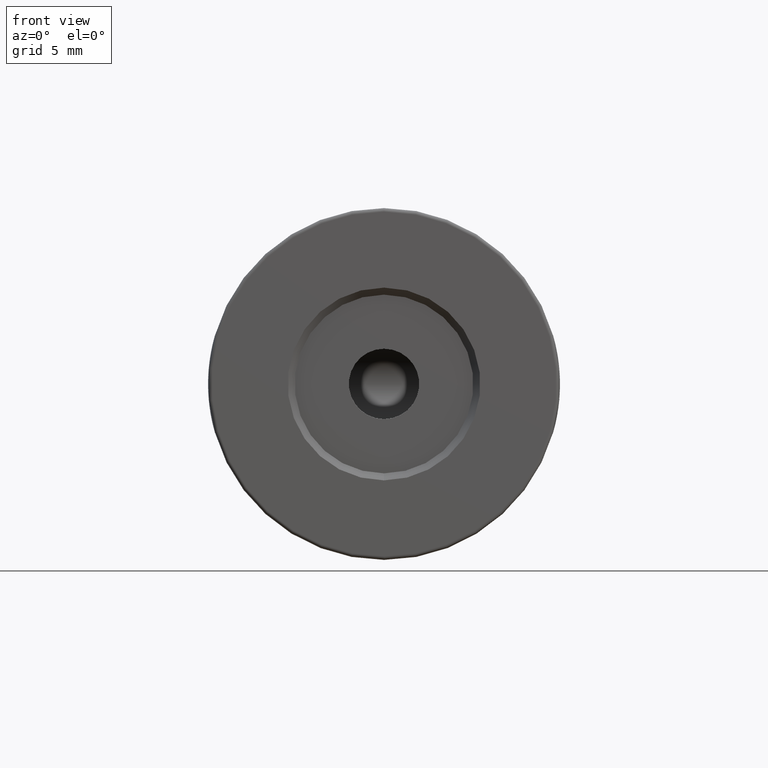
[diagram: clean part render]
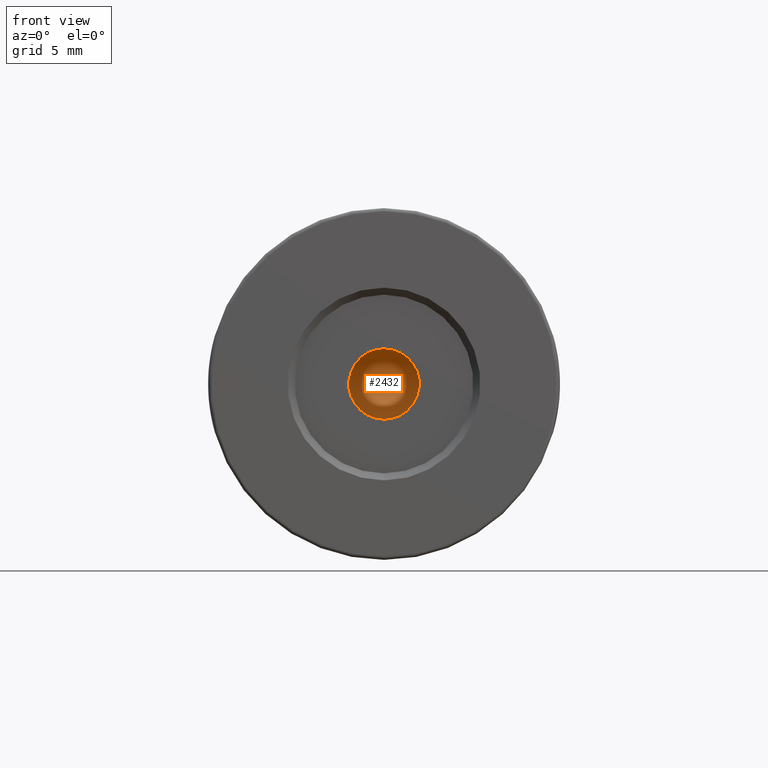
[diagram: same view with one face highlighted and labeled with its STEP entity id]
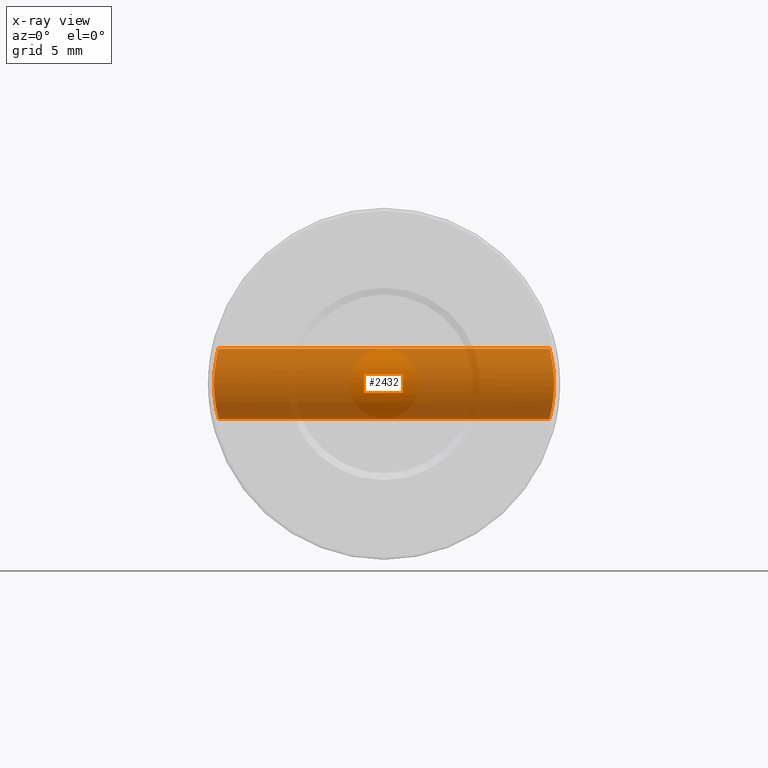
[diagram: x-ray of the same camera — body ghosted, the highlighted face saturated]
A machine part, front view. The second image highlights one B-rep face of the part: STEP entity #2432.
The next image is the same camera in x-ray: the body ghosted, the highlighted face saturated — about 84% of this face is hidden behind the body in this view.
In plain terms, the highlighted cylindrical surface (edge-blend (fillet) strip) has radius 2.5 mm, axis along (1, -0, -0).
Its self-contained STEP definition (entity closure, byte-faithful):
#4 = CARTESIAN_POINT ( 'NONE',  ( -10.62437748581073649, -0.1803884314933206778, 51.93853686256246505 ) ) ;
#10 = CARTESIAN_POINT ( 'NONE',  ( -34.39265141552139227, -0.2193597808292668816, 51.90615621044650396 ) ) ;
#20 = CARTESIAN_POINT ( 'NONE',  ( -10.62344330914831225, -0.1859351134989435661, 51.93400119754716826 ) ) ;
#28 = CARTESIAN_POINT ( 'NONE',  ( -10.58721188071734787, -0.3882578059546166194, 48.25113323411276411 ) ) ;
#36 = CARTESIAN_POINT ( 'NONE',  ( -10.48170455071147522, -0.8797127351548863494, 51.03018400399467680 ) ) ;
#45 = CARTESIAN_POINT ( 'NONE',  ( -10.75775311712865445, 1.398252184769388506, 47.50000000000000000 ) ) ;
#46 = CARTESIAN_POINT ( 'NONE',  ( -10.72308232675205986, 0.5941581163004499011, 47.63248772437646750 ) ) ;
#52 = CARTESIAN_POINT ( 'NONE',  ( -10.68486198365939366, 0.2326005165148466447, 52.21170044164220769 ) ) ;
#60 = CARTESIAN_POINT ( 'NONE',  ( -34.49555993425454403, -0.7371358815147359689, 51.30020623637663135 ) ) ;
#61 = DIRECTION ( 'NONE',  ( 1.000000000000000000, -0.0000000000000000000, -0.0000000000000000000 ) ) ;
#64 = CARTESIAN_POINT ( 'NONE',  ( -10.68052348045019784, 0.1982792118971468120, 47.80671014582457445 ) ) ;
#70 = CARTESIAN_POINT ( 'NONE',  ( -10.53564298324378257, -0.6428015421453538991, 51.44386386526315391 ) ) ;
#82 = CARTESIAN_POINT ( 'NONE',  ( -10.68765339093628519, 0.2547109133025253214, 47.77645880616913843 ) ) ;
#85 = CARTESIAN_POINT ( 'NONE',  ( -34.29800687137474569, 0.4791906238469882395, 47.67497262551757586 ) ) ;
#112 = EDGE_LOOP ( 'NONE', ( #481, #2353, #709, #255, #1177 ) ) ;
#114 = CARTESIAN_POINT ( 'NONE',  ( -34.51594362385686310, -0.8258666277012809420, 51.14180818663960792 ) ) ;
#116 = CARTESIAN_POINT ( 'NONE',  ( -34.56747093977340057, -1.036417866412739475, 49.43074854711917254 ) ) ;
#131 = CARTESIAN_POINT ( 'NONE',  ( -34.55371675180102642, -0.9819582165694238363, 50.76562840239724750 ) ) ;
#134 = CARTESIAN_POINT ( 'NONE',  ( -34.53415704703507316, -0.9023810259837362624, 49.02146608222710711 ) ) ;
#150 = CARTESIAN_POINT ( 'NONE',  ( -34.48044836708264427, -0.6689643209632596399, 48.59404682438722745 ) ) ;
#189 = CARTESIAN_POINT ( 'NONE',  ( -34.34705827747517048, 0.07100138804354222399, 47.88122892107483608 ) ) ;
#193 = CARTESIAN_POINT ( 'NONE',  ( -34.26763340208005104, 0.8690186579160552593, 47.55632946928094640 ) ) ;
#198 = CARTESIAN_POINT ( 'NONE',  ( -34.31595423361532937, 0.3112339593886476741, 52.25194986132113684 ) ) ;
#210 = CARTESIAN_POINT ( 'NONE',  ( -10.69192657274768443, 0.2906602529965023329, 52.24135659736990789 ) ) ;
#228 = CARTESIAN_POINT ( 'NONE',  ( -34.47813198008005031, -0.6583300114746030163, 48.57853664004964855 ) ) ;
#232 = CARTESIAN_POINT ( 'NONE',  ( -34.36077538717431423, -0.02236865110984462973, 52.05716408901216141 ) ) ;
#238 = CARTESIAN_POINT ( 'NONE',  ( -10.47039545447000108, -0.9264528070377106017, 49.08012378245110341 ) ) ;
#252 = CARTESIAN_POINT ( 'NONE',  ( -34.39467459845570829, -0.2310918294290756070, 51.89616302055772223 ) ) ;
#255 = ORIENTED_EDGE ( 'NONE', *, *, #507, .T. ) ;
#264 = CARTESIAN_POINT ( 'NONE',  ( -10.43471003864933166, -1.068430130415672474, 49.59111660097227059 ) ) ;
#269 = CARTESIAN_POINT ( 'NONE',  ( -34.40082131572958701, -0.2661626668825619046, 51.86541833322175421 ) ) ;
#275 = FACE_OUTER_BOUND ( 'NONE', #112, .T. ) ;
#283 = CARTESIAN_POINT ( 'NONE',  ( -10.47779617321161716, -0.8959676763990875870, 50.99345784365126377 ) ) ;
#293 = CARTESIAN_POINT ( 'NONE',  ( -10.62899526948806539, -0.1530495289050314844, 48.03899991150878179 ) ) ;
#301 = CARTESIAN_POINT ( 'NONE',  ( -10.67397712750120498, 0.1479697805592347648, 52.16528279548629854 ) ) ;
#312 = CARTESIAN_POINT ( 'NONE',  ( -10.62054598116515791, -0.2030448081873243438, 48.08011745683154459 ) ) ;
#316 = CARTESIAN_POINT ( 'NONE',  ( -34.28890165779009891, 0.5753963107748397698, 47.63868203714510940 ) ) ;
#321 = CARTESIAN_POINT ( 'NONE',  ( -10.65924026931347690, 0.04251003605533445334, 52.10049443549728920 ) ) ;
#332 = CARTESIAN_POINT ( 'NONE',  ( -10.75344419893103520, 1.071524213025601524, 47.51584169795629720 ) ) ;
#338 = CARTESIAN_POINT ( 'NONE',  ( -10.65663854589587345, 0.02464572236132245298, 52.08885589110060721 ) ) ;
#347 = CARTESIAN_POINT ( 'NONE',  ( -34.46581749594461286, -0.6009040175811750650, 51.50126430587299353 ) ) ;
#366 = CARTESIAN_POINT ( 'NONE',  ( -34.46180608894741226, -0.5818729988016708710, 51.52640824507910366 ) ) ;
#398 = CARTESIAN_POINT ( 'NONE',  ( -34.57597065877052245, -1.069532232658006565, 50.40818179684670497 ) ) ;
#416 = CARTESIAN_POINT ( 'NONE',  ( -34.58016539617010210, -1.085858857418758205, 49.67297012222038433 ) ) ;
#473 = CARTESIAN_POINT ( 'NONE',  ( -10.71009666006360916, 0.4561568447563419393, 52.31578128150344043 ) ) ;
#481 = ORIENTED_EDGE ( 'NONE', *, *, #569, .T. ) ;
#487 = CARTESIAN_POINT ( 'NONE',  ( -34.32517718084985603, 0.2355261595478357339, 47.78675913459554891 ) ) ;
#493 = CARTESIAN_POINT ( 'NONE',  ( -34.54369241578397975, -0.9415190389735978993, 49.11843870328495854 ) ) ;
#497 = CARTESIAN_POINT ( 'NONE',  ( -34.45474805831925380, -0.5478052659481170705, 51.56936024582881117 ) ) ;
#503 = CARTESIAN_POINT ( 'NONE',  ( -10.54864018143774018, -0.5816680152934502468, 48.47333049421902729 ) ) ;
#507 = EDGE_CURVE ( 'NONE', #1039, #3047, #1747, .T. ) ;
#512 = CARTESIAN_POINT ( 'NONE',  ( -10.72622720232376281, 0.6314631383175767221, 52.37983731701496737 ) ) ;
#513 = CARTESIAN_POINT ( 'NONE',  ( -34.45111437474876226, -0.5300818197651799846, 48.40891250346157193 ) ) ;
#517 = CARTESIAN_POINT ( 'NONE',  ( -34.30408236987682358, 0.4194607100801373001, 52.30052462114043266 ) ) ;
#529 = CARTESIAN_POINT ( 'NONE',  ( -10.44688409141883056, -1.021078929300595295, 50.65151652725806031 ) ) ;
#531 = CARTESIAN_POINT ( 'NONE',  ( -34.38704001703006696, -0.1864058910311852113, 48.06638648098589783 ) ) ;
#546 = CARTESIAN_POINT ( 'NONE',  ( -10.52981318183221049, -0.6696149487519204024, 51.40499581736358437 ) ) ;
#551 = CARTESIAN_POINT ( 'NONE',  ( -34.44811386680073184, -0.5154113351079939731, 51.60895465329333121 ) ) ;
#556 = CARTESIAN_POINT ( 'NONE',  ( -10.50337425847412298, -0.7875330553439074954, 48.78598592219974250 ) ) ;
#562 = CARTESIAN_POINT ( 'NONE',  ( -10.55933643631673036, -0.5298495552806219422, 51.59136355188930168 ) ) ;
#564 = AXIS2_PLACEMENT_3D ( 'NONE', #1336, #1092, #2412 ) ;
#569 = EDGE_CURVE ( 'NONE', #727, #3101, #3458, .T. ) ;
#573 = CARTESIAN_POINT ( 'NONE',  ( -10.70455658934707621, 0.4028058138086482720, 47.70664235407782172 ) ) ;
#581 = CARTESIAN_POINT ( 'NONE',  ( -10.47600715848626152, -0.9033707158368257106, 50.97620108939386085 ) ) ;
#591 = CARTESIAN_POINT ( 'NONE',  ( -10.70635219090200252, 0.4197558956641881389, 47.69935029143454130 ) ) ;
#598 = CARTESIAN_POINT ( 'NONE',  ( -10.59387149139175754, -0.3528523106093582329, 51.78446549813023125 ) ) ;
#634 = VERTEX_POINT ( 'NONE', #2827 ) ;
#659 = EDGE_CURVE ( 'NONE', #727, #3047, #2247, .T. ) ;
#678 = CARTESIAN_POINT ( 'NONE',  ( -34.45766587036780493, -0.5621190266067536134, 48.44791823235173212 ) ) ;
#694 = CARTESIAN_POINT ( 'NONE',  ( -34.51574154471299494, -0.8250691337205215969, 48.85603395556573503 ) ) ;
#709 = ORIENTED_EDGE ( 'NONE', *, *, #1890, .T. ) ;
#717 = CARTESIAN_POINT ( 'NONE',  ( -34.25695295455719958, 1.112906428189776697, 47.51599801852885463 ) ) ;
#718 = CARTESIAN_POINT ( 'NONE',  ( -10.75775323120715399, 1.317121902678270118, 52.50000000000002132 ) ) ;
#727 = VERTEX_POINT ( 'NONE', #1719 ) ;
#734 = CARTESIAN_POINT ( 'NONE',  ( -10.71216316140438884, 0.4768201538511090964, 52.32409050752311686 ) ) ;
#739 = CARTESIAN_POINT ( 'NONE',  ( -34.42801395613719251, -0.4135384967534036504, 51.72265782465134976 ) ) ;
#746 = CARTESIAN_POINT ( 'NONE',  ( -10.52659986134303693, -0.6842789163735558677, 48.61683424884410698 ) ) ;
#755 = CARTESIAN_POINT ( 'NONE',  ( -34.47459360791595628, -0.6420274704840180924, 48.55504079422338748 ) ) ;
#759 = CARTESIAN_POINT ( 'NONE',  ( -34.45330299445076605, -0.5407750536076870729, 51.57803819710194659 ) ) ;
#765 = CARTESIAN_POINT ( 'NONE',  ( -10.54466226501337367, -0.6005430652878442910, 48.49825746406909843 ) ) ;
#774 = CARTESIAN_POINT ( 'NONE',  ( -34.50679950141667973, -0.7864865987144373793, 48.78455501224498647 ) ) ;
#775 = CARTESIAN_POINT ( 'NONE',  ( -34.38468148764225418, -0.1723687771389699475, 48.05495386555471526 ) ) ;
#779 = CARTESIAN_POINT ( 'NONE',  ( -34.32973418822894018, 0.1994190620384079238, 52.19391175066421340 ) ) ;
#790 = CARTESIAN_POINT ( 'NONE',  ( -10.50780244124337592, -0.7681796817775874420, 51.24778492135310870 ) ) ;
#808 = CARTESIAN_POINT ( 'NONE',  ( -10.45095694804539477, -1.004789451087468866, 49.30937450540822908 ) ) ;
#813 = CARTESIAN_POINT ( 'NONE',  ( -34.42163468960668382, -0.3800297845704209143, 51.75724919837321636 ) ) ;
#823 = CARTESIAN_POINT ( 'NONE',  ( -10.63294623926910099, -0.1287006706456982341, 51.97970505892236304 ) ) ;
#834 = CARTESIAN_POINT ( 'NONE',  ( -10.65192854981632742, -0.007112948275145715253, 47.93238411280905353 ) ) ;
#841 = CARTESIAN_POINT ( 'NONE',  ( -10.56932247538099290, -0.4803972759782706992, 51.64957173091018916 ) ) ;
#851 = CARTESIAN_POINT ( 'NONE',  ( -10.73524935634131516, 0.7501397675428063128, 47.58512630802446353 ) ) ;
#858 = CARTESIAN_POINT ( 'NONE',  ( -10.50134449062284148, -0.7962799576074739427, 51.19769795373751720 ) ) ;
#865 = CARTESIAN_POINT ( 'NONE',  ( -34.48808448558423834, -0.7036677772116114449, 51.35353115234058663 ) ) ;
#870 = CARTESIAN_POINT ( 'NONE',  ( -10.74267190343696576, 0.8671768546495410845, 47.55670384601889822 ) ) ;
#873 = CARTESIAN_POINT ( 'NONE',  ( -34.29428882789179056, 0.5177238711234519730, 47.66010762347374197 ) ) ;
#888 = CARTESIAN_POINT ( 'NONE',  ( -10.60970156007116394, -0.2654886929673718199, 48.13398014645178336 ) ) ;
#905 = LINE ( 'NONE', #1107, #1785 ) ;
#922 = CARTESIAN_POINT ( 'NONE',  ( -34.52237776065066299, -0.8532812731859517053, 48.91209882761436489 ) ) ;
#936 = CARTESIAN_POINT ( 'NONE',  ( -34.55953902161954261, -1.005153659594356208, 50.68936837211829527 ) ) ;
#938 = CARTESIAN_POINT ( 'NONE',  ( -34.55357667332192761, -0.9813988309537613475, 49.23254846258252115 ) ) ;
#953 = CARTESIAN_POINT ( 'NONE',  ( -34.58436371778454799, -1.101747815230613492, 49.83753810370576787 ) ) ;
#975 = CARTESIAN_POINT ( 'NONE',  ( -34.34333947314369340, 0.09759829477691389643, 47.86488434567955608 ) ) ;
#992 = CARTESIAN_POINT ( 'NONE',  ( -10.75667521398798065, 1.235421006825002221, 52.49604762626790944 ) ) ;
#993 = CARTESIAN_POINT ( 'NONE',  ( -34.40583974823650237, -0.2943204204934978252, 48.15994960694639815 ) ) ;
#1003 = CARTESIAN_POINT ( 'NONE',  ( -10.51501407881782058, -0.7363793038041487327, 48.69855127287216590 ) ) ;
#1030 = CARTESIAN_POINT ( 'NONE',  ( -10.73219813121981403, 0.7077767490346167367, 52.40308858968249694 ) ) ;
#1036 = CARTESIAN_POINT ( 'NONE',  ( -34.28602672658942652, 0.5950355727956065932, 52.37347955788578702 ) ) ;
#1039 = VERTEX_POINT ( 'NONE', #1873 ) ;
#1059 = CARTESIAN_POINT ( 'NONE',  ( -10.56681441816432176, -0.4930984351755354211, 48.36462535807400087 ) ) ;
#1066 = CARTESIAN_POINT ( 'NONE',  ( -10.51723568327209257, -0.7265641942448558543, 51.31788815418866534 ) ) ;
#1071 = CARTESIAN_POINT ( 'NONE',  ( -34.32265489828704830, 0.2554984144373432242, 52.22394071949533867 ) ) ;
#1076 = CARTESIAN_POINT ( 'NONE',  ( -10.49015723662941646, -0.8441725912525092079, 48.89457436136567026 ) ) ;
#1084 = CARTESIAN_POINT ( 'NONE',  ( -10.51011081746967868, -0.7580530289132585420, 51.26521392788514930 ) ) ;
#1092 = DIRECTION ( 'NONE',  ( 1.000000000000000000, -0.0000000000000000000, -0.0000000000000000000 ) ) ;
#1093 = CARTESIAN_POINT ( 'NONE',  ( -10.65951608119885741, 0.04397262649407106261, 47.89814453425144336 ) ) ;
#1100 = CARTESIAN_POINT ( 'NONE',  ( -10.66678853300221164, 0.09561727186248163146, 52.13390632464330565 ) ) ;
#1107 = CARTESIAN_POINT ( 'NONE',  ( -35.00520183104453764, 1.398252184769388728, 52.50000000000000711 ) ) ;
#1110 = CARTESIAN_POINT ( 'NONE',  ( -10.58870654708653269, -0.3803608511539144366, 48.24308501965853679 ) ) ;
#1117 = CARTESIAN_POINT ( 'NONE',  ( -10.44294982558156448, -1.036351153573099149, 49.43045362228356510 ) ) ;
#1129 = CARTESIAN_POINT ( 'NONE',  ( -10.57485337623805144, -0.4524102366566613576, 48.31908865531918451 ) ) ;
#1132 = CARTESIAN_POINT ( 'NONE',  ( -34.30005545319553306, 0.4586515401138411829, 47.68320585999445171 ) ) ;
#1136 = CARTESIAN_POINT ( 'NONE',  ( -10.64475702027863413, -0.05449199741924836554, 52.03499243828983367 ) ) ;
#1148 = CARTESIAN_POINT ( 'NONE',  ( -10.61189752609478631, -0.2530256317350424999, 48.12295669579027901 ) ) ;
#1177 = ORIENTED_EDGE ( 'NONE', *, *, #659, .F. ) ;
#1180 = CARTESIAN_POINT ( 'NONE',  ( -34.49189742569884487, -0.7208368889622009945, 51.32674070393353105 ) ) ;
#1197 = CARTESIAN_POINT ( 'NONE',  ( -34.54897798572429224, -0.9629645925416924213, 50.82316125434730480 ) ) ;
#1199 = CARTESIAN_POINT ( 'NONE',  ( -34.50003614694480802, -0.7569234432954018432, 48.73286471894269312 ) ) ;
#1214 = CARTESIAN_POINT ( 'NONE',  ( -34.48138769154284944, -0.6732635636674279001, 48.60037921175494802 ) ) ;
#1256 = CARTESIAN_POINT ( 'NONE',  ( -34.40289296276199593, -0.2778242768919360062, 48.14495784727603933 ) ) ;
#1266 = CARTESIAN_POINT ( 'NONE',  ( -10.50786879652205741, -0.7679670883881050125, 48.75133047365998351 ) ) ;
#1277 = CARTESIAN_POINT ( 'NONE',  ( -34.25265217549183916, 1.236269165593523622, 52.49999999999998579 ) ) ;
#1286 = CARTESIAN_POINT ( 'NONE',  ( -34.33611078083165324, 0.1503272234353575376, 47.83335261604787547 ) ) ;
#1293 = CARTESIAN_POINT ( 'NONE',  ( -34.56241719055794448, -1.016540575789292689, 49.35158547341726631 ) ) ;
#1297 = CARTESIAN_POINT ( 'NONE',  ( -34.36811292905907322, -0.07006115757143065170, 52.02348116212040452 ) ) ;
#1313 = CARTESIAN_POINT ( 'NONE',  ( -34.35081851356336813, 0.04444782519342278110, 52.10216400116998869 ) ) ;
#1319 = CARTESIAN_POINT ( 'NONE',  ( -10.49456390202389677, -0.8254235333270041330, 48.85732724745205502 ) ) ;
#1326 = CARTESIAN_POINT ( 'NONE',  ( -10.62583528340229577, -0.1716875950641233162, 51.94559000062294984 ) ) ;
#1328 = CARTESIAN_POINT ( 'NONE',  ( -34.39051756313286745, -0.2070101103378802210, 48.08329390852364327 ) ) ;
#1332 = CARTESIAN_POINT ( 'NONE',  ( -34.33170421931531280, 0.1841765981154878384, 52.18549987223106257 ) ) ;
#1336 = CARTESIAN_POINT ( 'NONE',  ( -35.00520183104453764, 1.398252184769388506, 50.00000000000000000 ) ) ;
#1344 = CARTESIAN_POINT ( 'NONE',  ( -10.43025254437210769, -1.085644778680322053, 49.71374546758001856 ) ) ;
#1353 = CARTESIAN_POINT ( 'NONE',  ( -10.64607111686072649, -0.04577195245549119107, 47.95906072895276395 ) ) ;
#1360 = CARTESIAN_POINT ( 'NONE',  ( -10.53935697225628587, -0.6254966278904094956, 51.46794146037775164 ) ) ;
#1370 = CARTESIAN_POINT ( 'NONE',  ( -10.70057055067832685, 0.3661159421488617283, 47.72291907341046624 ) ) ;
#1377 = CARTESIAN_POINT ( 'NONE',  ( -10.59768553197382168, -0.3321902542280796289, 51.80448705926472996 ) ) ;
#1390 = CARTESIAN_POINT ( 'NONE',  ( -10.75775311712865623, 1.236031257711929898, 47.50000000000000000 ) ) ;
#1397 = CARTESIAN_POINT ( 'NONE',  ( -10.60419655755958246, -0.2963636034840753108, 51.83817352606860851 ) ) ;
#1409 = CARTESIAN_POINT ( 'NONE',  ( -10.58234760794886498, -0.4137576540519005142, 48.27757271554101237 ) ) ;
#1441 = CARTESIAN_POINT ( 'NONE',  ( -34.53254672175685158, -0.8957462109828211450, 50.99453643543887438 ) ) ;
#1460 = CARTESIAN_POINT ( 'NONE',  ( -34.49294447752536996, -0.7255657383558774542, 48.68051045376237340 ) ) ;
#1514 = CARTESIAN_POINT ( 'NONE',  ( -34.26152439529791138, 0.9901480680356844477, 47.53318789124507049 ) ) ;
#1515 = CARTESIAN_POINT ( 'NONE',  ( -10.75209340271500835, 1.071636353599802138, 52.47891861098529631 ) ) ;
#1529 = CARTESIAN_POINT ( 'NONE',  ( -10.70449112277518822, 0.4016970245362215808, 52.29312540135870080 ) ) ;
#1530 = CARTESIAN_POINT ( 'NONE',  ( -34.42649553502509718, -0.4059594383566856868, 48.26863308257305363 ) ) ;
#1534 = CARTESIAN_POINT ( 'NONE',  ( -34.43263066567352837, -0.4374791448329103383, 51.69724255881645547 ) ) ;
#1547 = CARTESIAN_POINT ( 'NONE',  ( -10.74040006284352877, 0.8288618079345160261, 52.43464063303999723 ) ) ;
#1552 = CARTESIAN_POINT ( 'NONE',  ( -34.43550956289654152, -0.4522026044721966231, 51.68113994060188077 ) ) ;
#1559 = CARTESIAN_POINT ( 'NONE',  ( -10.55706874359513492, -0.5409305587045541985, 48.42215307470207364 ) ) ;
#1563 = CARTESIAN_POINT ( 'NONE',  ( -34.58436371778454799, -1.101747815230615046, 50.00000000000000000 ) ) ;
#1568 = CARTESIAN_POINT ( 'NONE',  ( -34.58436371778454799, -1.101747815230615046, 50.00000000000000000 ) ) ;
#1578 = CARTESIAN_POINT ( 'NONE',  ( -10.55563654014836494, -0.5478977700298309772, 48.43075464452042667 ) ) ;
#1584 = CARTESIAN_POINT ( 'NONE',  ( -10.42710243056527553, -1.097735351422951755, 49.83632547957881798 ) ) ;
#1590 = CARTESIAN_POINT ( 'NONE',  ( -34.36433900642597905, -0.04581549949826657642, 52.04091040488674480 ) ) ;
#1601 = CARTESIAN_POINT ( 'NONE',  ( -10.45853397089038417, -0.9753457992834111412, 50.80247828378053043 ) ) ;
#1618 = CARTESIAN_POINT ( 'NONE',  ( -10.55902407222945172, -0.5313805189203987256, 51.58951214123936779 ) ) ;
#1630 = CARTESIAN_POINT ( 'NONE',  ( -10.61791199076122716, -0.2184314463495034275, 48.09305608994720416 ) ) ;
#1637 = CARTESIAN_POINT ( 'NONE',  ( -10.43018898294854679, -1.086043810299175405, 50.32543852519913230 ) ) ;
#1639 = B_SPLINE_CURVE_WITH_KNOTS ( 'NONE', 3,
 ( #1734, #2498, #2244, #3299, #398, #1966, #2532, #1682, #936, #131, #1197, #1700, #2191, #3261, #1441, #2264, #2515, #114, #2461, #3330, #2759, #60, #1180, #865, #1928, #3004, #2739, #2208, #347, #366, #2934, #497, #759, #2119, #551, #2632, #1552, #1534, #739, #2874, #2895, #813, #3413, #2371, #269, #1823, #3190, #2916, #2650, #252, #10, #1876, #2349, #2137, #3432, #1297, #1590, #232, #3172, #2951, #1313, #2387, #2330, #2596, #1332, #779, #1071, #198, #2407, #2084, #517, #1036, #3154, #2100, #1277, #3394 ),
 .UNSPECIFIED., .F., .F.,
 ( 4, 2, 2, 2, 2, 1, 2, 2, 1, 2, 2, 2, 1, 2, 2, 2, 1, 1, 2, 2, 2, 2, 2, 2, 2, 2, 2, 1, 2, 2, 2, 1, 2, 2, 2, 2, 2, 1, 2, 2, 2, 4 ),
 ( 0.0000000000000000000, 0.01563223350078627241, 0.03126446700157254482, 0.03908058375196633849, 0.04689670050236013910, 0.05471281725275393276, 0.05862087562795077755, 0.06252893400314761541, 0.07034505075354244297, 0.07425310912873984981, 0.07816116750393724277, 0.08597728425433208421, 0.08988534262952996290, 0.09183937181712892306, 0.09379340100472786934, 0.1016095177551236683, 0.1055175761303221021, 0.1074716053179218811, 0.1084486199117213057, 0.1094256345055207164, 0.1172417512559174591, 0.1211498096311162953, 0.1231038388187162130, 0.1250578680063161308, 0.1328739847567160792, 0.1348280139443153725, 0.1358050285381150191, 0.1367820431319146657, 0.1387360723195141254, 0.1406901015071136130, 0.1485062182575125345, 0.1524142766327119813, 0.1543683058203113023, 0.1563223350079106511, 0.1641384517583071578, 0.1680465101335056610, 0.1719545685087041920, 0.1797706852591011706, 0.1836787436342996183, 0.1875868020094980382, 0.2188512690110833436, 0.2501157360126686768 ),
 .UNSPECIFIED. ) ;
#1648 = CARTESIAN_POINT ( 'NONE',  ( -10.74042506147667986, 0.8292857282064747260, 47.56526349991110436 ) ) ;
#1655 = CARTESIAN_POINT ( 'NONE',  ( -10.56685546659999808, -0.4927281287833141787, 51.63538786505993272 ) ) ;
#1666 = CARTESIAN_POINT ( 'NONE',  ( -10.63454691679359065, -0.1190031699460922104, 48.01264145042072329 ) ) ;
#1682 = CARTESIAN_POINT ( 'NONE',  ( -34.56249268766860894, -1.016837435991812644, 50.64733428474590227 ) ) ;
#1700 = CARTESIAN_POINT ( 'NONE',  ( -34.54368112407826885, -0.9414460339458976534, 50.88104559072728961 ) ) ;
#1719 = CARTESIAN_POINT ( 'NONE',  ( -34.25265054498070327, 1.398252184769378959, 47.49999999999540989 ) ) ;
#1734 = CARTESIAN_POINT ( 'NONE',  ( -34.58436371778454799, -1.101747815230615046, 50.00000000000000000 ) ) ;
#1736 = CARTESIAN_POINT ( 'NONE',  ( -34.47086386077137377, -0.6246421137252744504, 48.53088012368284865 ) ) ;
#1747 = B_SPLINE_CURVE_WITH_KNOTS ( 'NONE', 3,
 ( #2364, #718, #992, #2114, #1515, #2645, #1818, #3390, #1547, #2060, #1030, #512, #2096, #3131, #734, #473, #1529, #2606, #210, #1921, #52, #3184, #301, #1100, #2980, #321, #338, #2148, #2420, #1136, #3219, #823, #2132, #1326, #4, #20, #1886, #2436, #2166, #1397, #1377, #598, #2962, #2401, #841, #1655, #2472, #2946, #2732, #562, #1618, #2184, #2697, #1360, #70, #3235, #546, #1872, #1855, #1066, #1084, #790, #2929, #858, #2680, #1904, #36, #283, #581, #1601, #529, #1637, #2453, #2716, #1584, #1344, #2662, #264, #2997, #3203, #1117, #3253, #808, #1828, #2940, #2413, #238, #2108, #2125, #3418, #1076, #1319, #2394, #556, #1266, #1003, #2335, #2071, #3141, #746, #1811, #2902, #765, #503, #2922, #1578, #1559, #2656, #3454, #1059, #1129, #1932, #1409, #3282, #28, #1110, #1915, #3228, #888, #2195, #1148, #2466, #2744, #2691, #1630, #312, #2991, #293, #1666, #2726, #1353, #1950, #834, #2428, #1093, #2709, #2158, #2484, #1897, #64, #82, #2973, #1370, #573, #591, #3265, #2446, #46, #2178, #3247, #851, #1648, #870, #332, #1390, #3008 ),
 .UNSPECIFIED., .F., .F.,
 ( 4, 2, 2, 2, 2, 2, 1, 2, 2, 1, 2, 2, 2, 1, 2, 2, 2, 1, 1, 2, 2, 2, 2, 2, 2, 2, 1, 2, 2, 2, 1, 2, 2, 2, 2, 2, 1, 2, 2, 2, 2, 2, 2, 2, 2, 2, 1, 2, 2, 1, 2, 2, 2, 1, 2, 2, 2, 1, 1, 2, 2, 2, 2, 2, 2, 2, 2, 2, 1, 2, 2, 2, 1, 2, 2, 2, 2, 2, 1, 2, 2, 2, 2, 2, 2, 4 ),
 ( 0.5001617398552833382, 0.5157816854848272792, 0.5235916582995993052, 0.5314016311143712201, 0.5392116039291432461, 0.5470215767439152721, 0.5548315495586872981, 0.5587365359660733111, 0.5626415223734593241, 0.5704514951882306839, 0.5743564815956164749, 0.5782614680030022658, 0.5860714408177737367, 0.5899764272251591946, 0.5919289204288515904, 0.5938814136325439863, 0.6016913864473134588, 0.6055963728546982505, 0.6075488660583902023, 0.6085251126602362337, 0.6095013592620821541, 0.6173113320768497392, 0.6212163184842334207, 0.6251213048916172133, 0.6329312777063854645, 0.6368362641137691460, 0.6387887573174603206, 0.6397650039193059079, 0.6407412505211514953, 0.6485512233359116419, 0.6524562097432917707, 0.6544087029469811689, 0.6563611961506705672, 0.6641711689654274942, 0.6680761553728058466, 0.6719811417801843101, 0.6797911145949411260, 0.6836961010023194785, 0.6876010874096979419, 0.7188409786687252057, 0.7500808699277523584, 0.7657008155572666563, 0.7735107883720238053, 0.7813207611867809543, 0.7891307340015382144, 0.7969407068162953633, 0.8047506796310525123, 0.8086556660384311979, 0.8125606524458096613, 0.8203706252605680316, 0.8242756116679464951, 0.8281805980753250696, 0.8359905708900823296, 0.8398955572974609041, 0.8418480505011507464, 0.8438005437048405888, 0.8516105165195975157, 0.8555155029269765343, 0.8574679961306665987, 0.8584442427325111868, 0.8594204893343556639, 0.8672304621491107035, 0.8711354485564881678, 0.8730879417601773440, 0.8750404349638665202, 0.8828504077786218929, 0.8848029009823104030, 0.8857791475841547690, 0.8867553941859991351, 0.8887078873896885334, 0.8906603805933780427, 0.8984703534081374121, 0.9023753398155165417, 0.9043278330192061620, 0.9062803262228957824, 0.9140902990376550408, 0.9179952854450346145, 0.9219002718524142992, 0.9297102446671727805, 0.9336152310745521321, 0.9375202174819313727, 0.9453301902966899650, 0.9531401631114484463, 0.9609501359262070386, 0.9687601087409656309, 1.000000000000000000 ),
 .UNSPECIFIED. ) ;
#1749 = CARTESIAN_POINT ( 'NONE',  ( -34.44080632493822947, -0.4790193692568446293, 48.34885748903722202 ) ) ;
#1765 = CARTESIAN_POINT ( 'NONE',  ( -34.41225743646192115, -0.3296779909095731709, 48.19311185154111143 ) ) ;
#1785 = VECTOR ( 'NONE', #61, 1000.000000000000000 ) ;
#1791 = CARTESIAN_POINT ( 'NONE',  ( -34.35511391788769942, 0.01548280108895426152, 47.91720626425617269 ) ) ;
#1797 = CARTESIAN_POINT ( 'NONE',  ( -34.38577565378315626, -0.1788920693440091692, 48.06025158871428715 ) ) ;
#1799 = CARTESIAN_POINT ( 'NONE',  ( -34.43271107041207557, -0.4380337505391847519, 48.30302201545041640 ) ) ;
#1811 = CARTESIAN_POINT ( 'NONE',  ( -10.53216740899711823, -0.6588951867474662771, 48.57891688834403254 ) ) ;
#1818 = CARTESIAN_POINT ( 'NONE',  ( -10.74690030135665708, 0.9473856641476823270, 52.45933682717255664 ) ) ;
#1823 = CARTESIAN_POINT ( 'NONE',  ( -34.39988808702985068, -0.2608806377944121180, 51.87011153448112566 ) ) ;
#1828 = CARTESIAN_POINT ( 'NONE',  ( -10.45675696193068305, -0.9816754134890275374, 49.23350322604092355 ) ) ;
#1837 = DIRECTION ( 'NONE',  ( 1.000000000000000000, -0.0000000000000000000, -0.0000000000000000000 ) ) ;
#1855 = CARTESIAN_POINT ( 'NONE',  ( -10.52225190997175730, -0.7040929115700340635, 51.35352181803693128 ) ) ;
#1872 = CARTESIAN_POINT ( 'NONE',  ( -10.52885508855222518, -0.6739989469353960816, 51.39853227014915404 ) ) ;
#1873 = CARTESIAN_POINT ( 'NONE',  ( -10.75775312123389327, 1.398252184769396944, 52.49999999860907707 ) ) ;
#1876 = CARTESIAN_POINT ( 'NONE',  ( -34.39003097981512980, -0.2040613252011174994, 51.91903397198635162 ) ) ;
#1886 = CARTESIAN_POINT ( 'NONE',  ( -10.61972372434184031, -0.2079601789342997165, 51.91591326568502041 ) ) ;
#1890 = EDGE_CURVE ( 'NONE', #634, #1039, #905, .T. ) ;
#1897 = CARTESIAN_POINT ( 'NONE',  ( -10.67858783943466783, 0.1833180170151947896, 47.81497774255579714 ) ) ;
#1904 = CARTESIAN_POINT ( 'NONE',  ( -10.48775368433962640, -0.8544294256876524551, 51.08551524650194864 ) ) ;
#1915 = CARTESIAN_POINT ( 'NONE',  ( -10.59842354234949724, -0.3285848289718182880, 48.19128023086862811 ) ) ;
#1921 = CARTESIAN_POINT ( 'NONE',  ( -10.68741613334550422, 0.2532371235398429565, 52.22247155065245039 ) ) ;
#1928 = CARTESIAN_POINT ( 'NONE',  ( -34.48550909627252281, -0.6920244124379710815, 51.37144371160391643 ) ) ;
#1932 = CARTESIAN_POINT ( 'NONE',  ( -10.57773180392496570, -0.4376908254955488298, 48.30298647972531967 ) ) ;
#1950 = CARTESIAN_POINT ( 'NONE',  ( -10.64961320538752076, -0.02246788177557609845, 47.94290469188756987 ) ) ;
#1953 = CARTESIAN_POINT ( 'NONE',  ( -34.31813764481845652, 0.2935287059200852866, 47.75722876505655279 ) ) ;
#1966 = CARTESIAN_POINT ( 'NONE',  ( -34.56987545375760362, -1.045809881140021380, 50.52745018298058710 ) ) ;
#1984 = CARTESIAN_POINT ( 'NONE',  ( -34.52845201512226225, -0.8786810073792170606, 48.96753673017088460 ) ) ;
#2000 = CARTESIAN_POINT ( 'NONE',  ( -34.56966959213394119, -1.045008463542665078, 49.46876354832347289 ) ) ;
#2011 = CARTESIAN_POINT ( 'NONE',  ( -34.27816724707266616, 0.7083107737308272922, 47.59676330415771872 ) ) ;
#2032 = CARTESIAN_POINT ( 'NONE',  ( -34.48795404595430369, -0.7031998793578341234, 48.64510045659206838 ) ) ;
#2058 = CARTESIAN_POINT ( 'NONE',  ( -34.28408417305664813, 0.6325990094517049966, 47.61980232290789417 ) ) ;
#2060 = CARTESIAN_POINT ( 'NONE',  ( -10.73519474087566294, 0.7493470908531059127, 52.41466407443582654 ) ) ;
#2071 = CARTESIAN_POINT ( 'NONE',  ( -10.52251240193446158, -0.7027964427749074927, 48.64511647982650544 ) ) ;
#2084 = CARTESIAN_POINT ( 'NONE',  ( -34.30585923076126420, 0.4026942709284840327, 52.29330818215277077 ) ) ;
#2096 = CARTESIAN_POINT ( 'NONE',  ( -10.72136315417403374, 0.5738019490817520829, 52.36077209950065026 ) ) ;
#2100 = CARTESIAN_POINT ( 'NONE',  ( -34.25692942768889537, 1.072705232125634511, 52.48426854195839297 ) ) ;
#2108 = CARTESIAN_POINT ( 'NONE',  ( -10.47238800387580326, -0.9182809379506166048, 49.05975502739333649 ) ) ;
#2114 = CARTESIAN_POINT ( 'NONE',  ( -10.75344100360280741, 1.112614096202802383, 52.48396916620096420 ) ) ;
#2119 = CARTESIAN_POINT ( 'NONE',  ( -34.45235365778889047, -0.5361417108543222731, 51.58370875816657275 ) ) ;
#2125 = CARTESIAN_POINT ( 'NONE',  ( -10.47787395022849033, -0.8956762105241855565, 49.00529512620577322 ) ) ;
#2132 = CARTESIAN_POINT ( 'NONE',  ( -10.62800475087760965, -0.1586852751790923111, 51.95605736541126873 ) ) ;
#2137 = CARTESIAN_POINT ( 'NONE',  ( -34.38153388469511640, -0.1538147825516586187, 51.96040254886683840 ) ) ;
#2148 = CARTESIAN_POINT ( 'NONE',  ( -10.65514354456006529, 0.01449203190350239340, 52.08213575340118240 ) ) ;
#2158 = CARTESIAN_POINT ( 'NONE',  ( -10.67175156277426140, 0.1317791047551599148, 47.84443531905029801 ) ) ;
#2162 = VECTOR ( 'NONE', #1837, 1000.000000000000000 ) ;
#2166 = CARTESIAN_POINT ( 'NONE',  ( -10.60718500968746625, -0.2796514541243256269, 51.85339265519177587 ) ) ;
#2178 = CARTESIAN_POINT ( 'NONE',  ( -10.72619458734585862, 0.6309908819573293304, 47.62028681999434099 ) ) ;
#2184 = CARTESIAN_POINT ( 'NONE',  ( -10.55249967033324943, -0.5632656986798920684, 51.55062747424514669 ) ) ;
#2191 = CARTESIAN_POINT ( 'NONE',  ( -34.54002586174328115, -0.9265255133527851017, 50.91969437418809008 ) ) ;
#2195 = CARTESIAN_POINT ( 'NONE',  ( -10.61064650977080781, -0.2601381410663595184, 48.12922970415745993 ) ) ;
#2208 = CARTESIAN_POINT ( 'NONE',  ( -34.47358128225248208, -0.6374202605641295927, 51.45179814204661284 ) ) ;
#2244 = CARTESIAN_POINT ( 'NONE',  ( -34.58332565315851070, -1.097829955506729904, 50.16206928806579413 ) ) ;
#2247 = LINE ( 'NONE', #2795, #2162 ) ;
#2264 = CARTESIAN_POINT ( 'NONE',  ( -34.52671466102345477, -0.8715178151167685128, 51.04931399658805447 ) ) ;
#2266 = CARTESIAN_POINT ( 'NONE',  ( -34.55052360423418634, -0.9691579968234480535, 49.19560660655854889 ) ) ;
#2276 = CARTESIAN_POINT ( 'NONE',  ( -34.25265054498070327, 1.398252184769378959, 47.49999999999540989 ) ) ;
#2283 = CARTESIAN_POINT ( 'NONE',  ( -34.46314919984172320, -0.5883474060881457302, 48.48175091599105713 ) ) ;
#2300 = EDGE_CURVE ( 'NONE', #3101, #634, #1639, .T. ) ;
#2306 = CARTESIAN_POINT ( 'NONE',  ( -34.35355224952478892, 0.02609830713697438784, 47.91018924371641674 ) ) ;
#2310 = CARTESIAN_POINT ( 'NONE',  ( -34.25265048614456731, 1.317191779378243943, 47.50000000000000000 ) ) ;
#2324 = CARTESIAN_POINT ( 'NONE',  ( -34.26996838982064730, 0.8294527486274447803, 47.56522263062265665 ) ) ;
#2326 = CARTESIAN_POINT ( 'NONE',  ( -34.41594418339022354, -0.3496906533515047877, 48.21243221649979205 ) ) ;
#2330 = CARTESIAN_POINT ( 'NONE',  ( -34.33855469411610528, 0.1324983065504476976, 52.15598756973253103 ) ) ;
#2335 = CARTESIAN_POINT ( 'NONE',  ( -10.51868758877166776, -0.7200257151352102980, 48.67196310145175886 ) ) ;
#2339 = CARTESIAN_POINT ( 'NONE',  ( -34.37321774597857882, -0.1023266511621422764, 48.00033112861613915 ) ) ;
#2349 = CARTESIAN_POINT ( 'NONE',  ( -34.38899210786940586, -0.1979629009021773856, 51.92411746700022235 ) ) ;
#2353 = ORIENTED_EDGE ( 'NONE', *, *, #2300, .T. ) ;
#2364 = CARTESIAN_POINT ( 'NONE',  ( -10.75775312123389327, 1.398252184769396944, 52.49999999860907707 ) ) ;
#2371 = CARTESIAN_POINT ( 'NONE',  ( -34.40604090009118465, -0.2955402757506489508, 51.83903909740818250 ) ) ;
#2387 = CARTESIAN_POINT ( 'NONE',  ( -34.34574828842200134, 0.08003128975096084063, 52.12460697452652170 ) ) ;
#2394 = CARTESIAN_POINT ( 'NONE',  ( -10.49703592662609175, -0.8148377673072625393, 48.83698465690862633 ) ) ;
#2401 = CARTESIAN_POINT ( 'NONE',  ( -10.57732511994433544, -0.4399142557607957915, 51.69492976375141779 ) ) ;
#2407 = CARTESIAN_POINT ( 'NONE',  ( -34.30982150684884857, 0.3662233020903024050, 52.27712853468052856 ) ) ;
#2412 = DIRECTION ( 'NONE',  ( 0.0000000000000000000, 0.0000000000000000000, -1.000000000000000000 ) ) ;
#2413 = CARTESIAN_POINT ( 'NONE',  ( -10.46675418761145337, -0.9413161042497403264, 49.11861145028936448 ) ) ;
#2420 = CARTESIAN_POINT ( 'NONE',  ( -10.64957744780559068, -0.02300115497812540641, 52.05702266498714437 ) ) ;
#2428 = CARTESIAN_POINT ( 'NONE',  ( -10.65285238118431010, -0.0009475333823180370069, 47.92819957675023090 ) ) ;
#2432 = ADVANCED_FACE ( 'NONE', ( #275 ), #2990, .F. ) ;
#2436 = CARTESIAN_POINT ( 'NONE',  ( -10.61534918407609140, -0.2334643237119172487, 51.89451868791935851 ) ) ;
#2446 = CARTESIAN_POINT ( 'NONE',  ( -10.71610056786102128, 0.5169422704539301527, 47.66013366170108156 ) ) ;
#2453 = CARTESIAN_POINT ( 'NONE',  ( -10.42602345771456918, -1.101812877874096985, 50.16113930389182229 ) ) ;
#2461 = CARTESIAN_POINT ( 'NONE',  ( -34.51348870992300277, -0.8153565647988857412, 51.16202697222068707 ) ) ;
#2466 = CARTESIAN_POINT ( 'NONE',  ( -10.61231992383251210, -0.2506214636070058788, 48.12083918758734313 ) ) ;
#2472 = CARTESIAN_POINT ( 'NONE',  ( -10.56345576253867335, -0.5095870481994189127, 51.61561891082097020 ) ) ;
#2484 = CARTESIAN_POINT ( 'NONE',  ( -10.67407581826330087, 0.1490699394473972705, 47.83437514433466475 ) ) ;
#2498 = CARTESIAN_POINT ( 'NONE',  ( -34.58436371778454799, -1.101747815230613270, 50.08077539355655006 ) ) ;
#2515 = CARTESIAN_POINT ( 'NONE',  ( -34.52032622243723381, -0.8445100356600949709, 51.10473890565936017 ) ) ;
#2532 = CARTESIAN_POINT ( 'NONE',  ( -34.56758620653808833, -1.036867936839463544, 50.56735310508683057 ) ) ;
#2534 = CARTESIAN_POINT ( 'NONE',  ( -34.50233437376179779, -0.7670108864201463650, 48.75018965324332498 ) ) ;
#2551 = CARTESIAN_POINT ( 'NONE',  ( -34.44989863870507207, -0.5241191198567841658, 48.40171871317532748 ) ) ;
#2566 = CARTESIAN_POINT ( 'NONE',  ( -34.55963833726764278, -1.005550600650154225, 49.31192079836262820 ) ) ;
#2591 = CARTESIAN_POINT ( 'NONE',  ( -34.26348267496504008, 0.9478053007883340264, 47.54058718524886018 ) ) ;
#2596 = CARTESIAN_POINT ( 'NONE',  ( -34.33622545324849540, 0.1498362926353523916, 52.16606716929511833 ) ) ;
#2606 = CARTESIAN_POINT ( 'NONE',  ( -10.69849887821514578, 0.3465721217966779011, 52.26868595215140800 ) ) ;
#2607 = CARTESIAN_POINT ( 'NONE',  ( -34.38650796547552346, -0.1832489827889925149, 48.06380219130900855 ) ) ;
#2621 = CARTESIAN_POINT ( 'NONE',  ( -34.33157020775819745, 0.1848587072187049263, 47.81387465575910767 ) ) ;
#2632 = CARTESIAN_POINT ( 'NONE',  ( -34.44354952716194873, -0.4929003277068218503, 51.63560382801306758 ) ) ;
#2645 = CARTESIAN_POINT ( 'NONE',  ( -10.74885913942061144, 0.9897023148778196777, 52.46673922109157218 ) ) ;
#2650 = CARTESIAN_POINT ( 'NONE',  ( -34.39678456562196374, -0.2431949740157924589, 51.88565121881861586 ) ) ;
#2656 = CARTESIAN_POINT ( 'NONE',  ( -10.55800996917031931, -0.5363372430446663452, 48.41653009998927359 ) ) ;
#2662 = CARTESIAN_POINT ( 'NONE',  ( -10.43156405840179701, -1.080594982302729656, 49.67285477178211295 ) ) ;
#2680 = CARTESIAN_POINT ( 'NONE',  ( -10.49436252010286630, -0.8263483254506026610, 51.14147247850220879 ) ) ;
#2691 = CARTESIAN_POINT ( 'NONE',  ( -10.61587757320903513, -0.2302350719672288659, 48.10310048784854331 ) ) ;
#2697 = CARTESIAN_POINT ( 'NONE',  ( -10.54703919518193622, -0.5893708078809963835, 51.51690487191481793 ) ) ;
#2709 = CARTESIAN_POINT ( 'NONE',  ( -10.66457406159707411, 0.07945628604295393305, 47.87575189722658564 ) ) ;
#2716 = CARTESIAN_POINT ( 'NONE',  ( -10.42604825907035959, -1.101714980132613597, 49.91792093696211197 ) ) ;
#2726 = CARTESIAN_POINT ( 'NONE',  ( -10.64232181268313582, -0.06986180924141571769, 47.97637558954502168 ) ) ;
#2732 = CARTESIAN_POINT ( 'NONE',  ( -10.56031926644875263, -0.5250308565942917172, 51.59718396469174451 ) ) ;
#2739 = CARTESIAN_POINT ( 'NONE',  ( -34.47841176954228359, -0.6597039480266085887, 51.41991877062068994 ) ) ;
#2744 = CARTESIAN_POINT ( 'NONE',  ( -10.61375476853296895, -0.2424175754169399233, 48.11367224342438931 ) ) ;
#2747 = CARTESIAN_POINT ( 'NONE',  ( -34.31159673120750142, 0.3493163016485640870, 47.73004764879289752 ) ) ;
#2759 = CARTESIAN_POINT ( 'NONE',  ( -34.50268437595401849, -0.7686213967388003665, 51.24753063478505766 ) ) ;
#2795 = CARTESIAN_POINT ( 'NONE',  ( -35.00520183104453764, 1.398252184769388506, 47.50000000000000000 ) ) ;
#2812 = CARTESIAN_POINT ( 'NONE',  ( -34.50873068779797848, -0.7948591729361924596, 48.79970146558434863 ) ) ;
#2827 = CARTESIAN_POINT ( 'NONE',  ( -34.25265052839080937, 1.398252184769062101, 52.50000002275201183 ) ) ;
#2853 = CARTESIAN_POINT ( 'NONE',  ( -34.25829749248940459, 1.071978150780086958, 47.52103727241830455 ) ) ;
#2865 = CARTESIAN_POINT ( 'NONE',  ( -34.36546234110406317, -0.05330031744584296655, 47.96415985759649203 ) ) ;
#2870 = CARTESIAN_POINT ( 'NONE',  ( -34.44330006835456004, -0.4914919942546702725, 48.36318210990523170 ) ) ;
#2874 = CARTESIAN_POINT ( 'NONE',  ( -34.42642532567477787, -0.4052489239092620377, 51.73133957602678379 ) ) ;
#2884 = CARTESIAN_POINT ( 'NONE',  ( -34.32262663299325567, 0.2561880021605739688, 47.77601120060988649 ) ) ;
#2891 = CARTESIAN_POINT ( 'NONE',  ( -34.39483878225289004, -0.2322178006852907706, 48.10442029937984643 ) ) ;
#2895 = CARTESIAN_POINT ( 'NONE',  ( -34.42314861018267891, -0.3880299837854027656, 51.74909947996818715 ) ) ;
#2902 = CARTESIAN_POINT ( 'NONE',  ( -10.53696138729740994, -0.6367714058425403278, 48.54730203787747911 ) ) ;
#2912 = CARTESIAN_POINT ( 'NONE',  ( -34.44837371979875229, -0.5166280657111576025, 48.39272163308833541 ) ) ;
#2916 = CARTESIAN_POINT ( 'NONE',  ( -34.39821049578433332, -0.2513442735105104742, 51.87852623589515844 ) ) ;
#2922 = CARTESIAN_POINT ( 'NONE',  ( -10.55350416967399596, -0.5582445814146674845, 48.44361620058385398 ) ) ;
#2929 = CARTESIAN_POINT ( 'NONE',  ( -10.50331884687314776, -0.7877254887725476662, 51.21321715002820696 ) ) ;
#2934 = CARTESIAN_POINT ( 'NONE',  ( -34.45689946489156341, -0.5582448629597247525, 51.55638464946518695 ) ) ;
#2940 = CARTESIAN_POINT ( 'NONE',  ( -10.46147760230260637, -0.9627523268706498216, 49.17624564889493399 ) ) ;
#2946 = CARTESIAN_POINT ( 'NONE',  ( -10.56183111278555664, -0.5176069660214539514, 51.60611082407992001 ) ) ;
#2951 = CARTESIAN_POINT ( 'NONE',  ( -34.35749941449518019, -0.0006002473737161262294, 52.07203507603664150 ) ) ;
#2962 = CARTESIAN_POINT ( 'NONE',  ( -10.58346237394703060, -0.4082778326665010282, 51.72892613119078220 ) ) ;
#2973 = CARTESIAN_POINT ( 'NONE',  ( -10.69439968392804552, 0.3107931540733123166, 47.74825504819294508 ) ) ;
#2980 = CARTESIAN_POINT ( 'NONE',  ( -10.66309147312706962, 0.06921372912241620379, 52.11764764596641442 ) ) ;
#2990 = CYLINDRICAL_SURFACE ( 'NONE', #564, 2.500000000000002220 ) ;
#2991 = CARTESIAN_POINT ( 'NONE',  ( -10.62159523113219706, -0.1968808583137024171, 48.07498591641930830 ) ) ;
#2997 = CARTESIAN_POINT ( 'NONE',  ( -10.43661014202161752, -1.061059718658742046, 49.54899595839135173 ) ) ;
#3004 = CARTESIAN_POINT ( 'NONE',  ( -34.48401816584359381, -0.6852538559213550151, 51.38169719037306038 ) ) ;
#3008 = CARTESIAN_POINT ( 'NONE',  ( -10.75775311712865445, 1.398252184769388506, 47.50000000000000000 ) ) ;
#3011 = CARTESIAN_POINT ( 'NONE',  ( -34.30563352355028428, 0.4043161049615053293, 47.70574000957589078 ) ) ;
#3047 = VERTEX_POINT ( 'NONE', #45 ) ;
#3073 = CARTESIAN_POINT ( 'NONE',  ( -34.45088966696440735, -0.5289798279518654889, 48.40758319721046377 ) ) ;
#3082 = CARTESIAN_POINT ( 'NONE',  ( -34.35093376906983309, 0.04409749595666787036, 47.89848142055636515 ) ) ;
#3101 = VERTEX_POINT ( 'NONE', #1563 ) ;
#3106 = CARTESIAN_POINT ( 'NONE',  ( -34.44673367134043929, -0.5085282891572378006, 48.38313120782031973 ) ) ;
#3131 = CARTESIAN_POINT ( 'NONE',  ( -10.71592032880778333, 0.5156644172005308002, 52.33911789085095023 ) ) ;
#3141 = CARTESIAN_POINT ( 'NONE',  ( -10.52509590031164066, -0.6911116932290077841, 48.62716597002440011 ) ) ;
#3154 = CARTESIAN_POINT ( 'NONE',  ( -34.27403437959144838, 0.7470135017660980425, 52.41939231723586801 ) ) ;
#3172 = CARTESIAN_POINT ( 'NONE',  ( -34.35844637509131871, -0.006921562649147682683, 52.06774620977071777 ) ) ;
#3184 = CARTESIAN_POINT ( 'NONE',  ( -10.67849549016550093, 0.1822641007429391946, 52.18467929009390360 ) ) ;
#3186 = CARTESIAN_POINT ( 'NONE',  ( -34.38215854309697050, -0.1572337748765596510, 48.04278849783072758 ) ) ;
#3190 = CARTESIAN_POINT ( 'NONE',  ( -34.39865427623912808, -0.2538691972467488345, 51.87630079082806844 ) ) ;
#3203 = CARTESIAN_POINT ( 'NONE',  ( -10.44066708811246791, -1.045268519316968181, 49.47006957759348467 ) ) ;
#3219 = CARTESIAN_POINT ( 'NONE',  ( -10.63697505380312514, -0.1036455915513016385, 51.99867907383301713 ) ) ;
#3228 = CARTESIAN_POINT ( 'NONE',  ( -10.60442211748795849, -0.2952135879600383817, 48.16065378190812396 ) ) ;
#3235 = CARTESIAN_POINT ( 'NONE',  ( -10.53211967790677761, -0.6590292879936910930, 51.42045086874996684 ) ) ;
#3247 = CARTESIAN_POINT ( 'NONE',  ( -10.73240326151514878, 0.7104556606544979447, 47.59611550458409823 ) ) ;
#3253 = CARTESIAN_POINT ( 'NONE',  ( -10.44802382936711282, -1.016394345111309327, 49.35103264552569158 ) ) ;
#3261 = CARTESIAN_POINT ( 'NONE',  ( -34.53800786392167765, -0.9182488754349010796, 50.94032211414742761 ) ) ;
#3265 = CARTESIAN_POINT ( 'NONE',  ( -10.71235439382920163, 0.4781380948706228651, 47.67509863890324340 ) ) ;
#3282 = CARTESIAN_POINT ( 'NONE',  ( -10.58393590303908027, -0.4054708075794614675, 48.26889160401387358 ) ) ;
#3299 = CARTESIAN_POINT ( 'NONE',  ( -34.57917339465431183, -1.081894588688275149, 50.32490689011945051 ) ) ;
#3330 = CARTESIAN_POINT ( 'NONE',  ( -34.50716656987114561, -0.7881284129746808365, 51.21293915887918757 ) ) ;
#3332 = CARTESIAN_POINT ( 'NONE',  ( -34.53237663777755984, -0.8950104627966863902, 49.00433359284723167 ) ) ;
#3347 = CARTESIAN_POINT ( 'NONE',  ( -34.54002772576235003, -0.9265728093618069705, 49.07969790760230921 ) ) ;
#3369 = CARTESIAN_POINT ( 'NONE',  ( -34.37723309314034736, -0.1273193400256209806, 48.01923149296637661 ) ) ;
#3373 = CARTESIAN_POINT ( 'NONE',  ( -34.25372608117671547, 1.235573217365538934, 47.50394556698646653 ) ) ;
#3385 = CARTESIAN_POINT ( 'NONE',  ( -34.36065912378640519, -0.02189760888164439881, 47.94221740964778888 ) ) ;
#3389 = CARTESIAN_POINT ( 'NONE',  ( -34.27515761366800717, 0.7500930228114570664, 47.58513699399789232 ) ) ;
#3390 = CARTESIAN_POINT ( 'NONE',  ( -10.74274117493972192, 0.8684932594802389216, 52.44355759702548880 ) ) ;
#3394 = CARTESIAN_POINT ( 'NONE',  ( -34.25265052839080937, 1.398252184769062101, 52.50000002275201183 ) ) ;
#3413 = CARTESIAN_POINT ( 'NONE',  ( -34.41198757834176547, -0.3286182130935369483, 51.80867430776850568 ) ) ;
#3418 = CARTESIAN_POINT ( 'NONE',  ( -10.48373458049419327, -0.8713286183530429829, 48.95026334269538637 ) ) ;
#3432 = CARTESIAN_POINT ( 'NONE',  ( -34.37594117883381983, -0.1195296099328005818, 51.98696219457725221 ) ) ;
#3454 = CARTESIAN_POINT ( 'NONE',  ( -10.56225021276454079, -0.5156065725511062015, 48.39127750130127481 ) ) ;
#3458 = B_SPLINE_CURVE_WITH_KNOTS ( 'NONE', 3,
 ( #2276, #2310, #3373, #717, #2853, #1514, #2591, #193, #2324, #3389, #2011, #2058, #316, #873, #85, #1132, #3011, #2747, #1953, #2884, #487, #2621, #1286, #975, #189, #3082, #2306, #1791, #3385, #2865, #2339, #3369, #3186, #775, #1797, #2607, #531, #1328, #2891, #1256, #993, #1765, #2326, #1530, #1799, #1749, #2870, #3106, #2912, #2551, #3073, #513, #678, #2283, #1736, #755, #228, #150, #1214, #2032, #1460, #1199, #2534, #774, #2812, #694, #922, #1984, #3332, #134, #3347, #493, #2266, #938, #2566, #1293, #116, #2000, #416, #953, #1568 ),
 .UNSPECIFIED., .F., .F.,
 ( 4, 2, 2, 2, 2, 2, 1, 2, 2, 1, 2, 2, 2, 1, 2, 2, 2, 1, 1, 1, 2, 2, 2, 2, 2, 2, 2, 1, 2, 2, 2, 1, 2, 2, 2, 2, 2, 1, 2, 2, 2, 2, 2, 2, 4 ),
 ( 0.7500228881835949712, 0.7656464576720899418, 0.7734582424163374270, 0.7812700271605850233, 0.7890818119048325086, 0.7968935966490801048, 0.8047053813933275901, 0.8086112737654511662, 0.8125171661375747423, 0.8203289508818212283, 0.8242348432539446934, 0.8281407356260682695, 0.8359525203703145335, 0.8398584127424377765, 0.8418113589284991205, 0.8437643051145603534, 0.8515760898588067285, 0.8554819822309298605, 0.8574349284169914265, 0.8584114015100224870, 0.8588996380565385724, 0.8593878746030545468, 0.8671996593473224602, 0.8711055517194569164, 0.8750114440915913727, 0.8828232288358596191, 0.8867291212079936313, 0.8886820673940611925, 0.8896585404870950287, 0.8906350135801288648, 0.8984467983244043277, 0.9023526906965426697, 0.9043056368826122293, 0.9062585830686819000, 0.9140703678129591392, 0.9179762601850981474, 0.9218821525572371556, 0.9296939373015140617, 0.9335998296736524038, 0.9375057220457907459, 0.9453175067900664308, 0.9531292915343421157, 0.9609410762786176896, 0.9687528610228933745, 1.000000000000000000 ),
 .UNSPECIFIED. ) ;